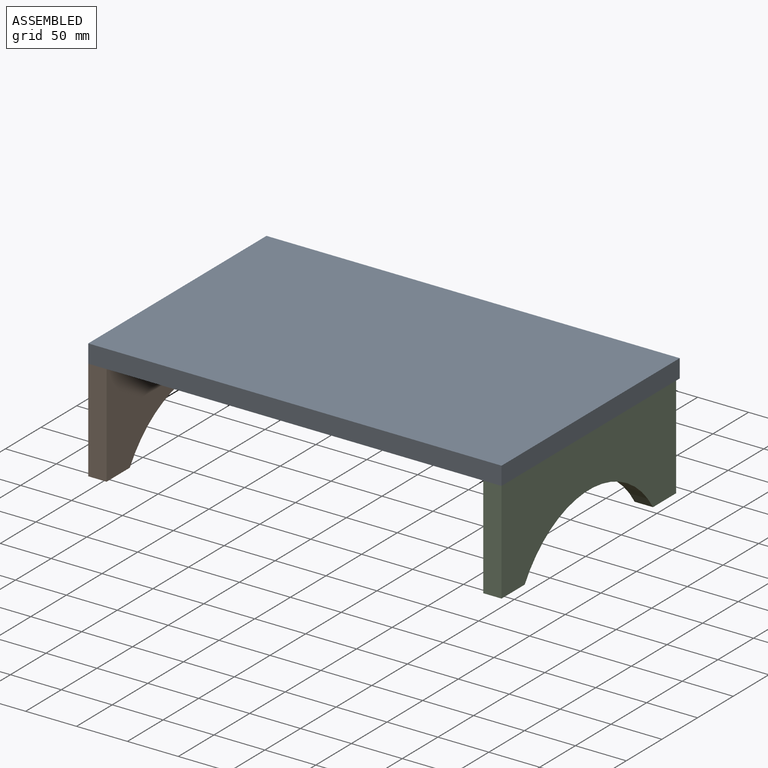
[diagram: assembled view]
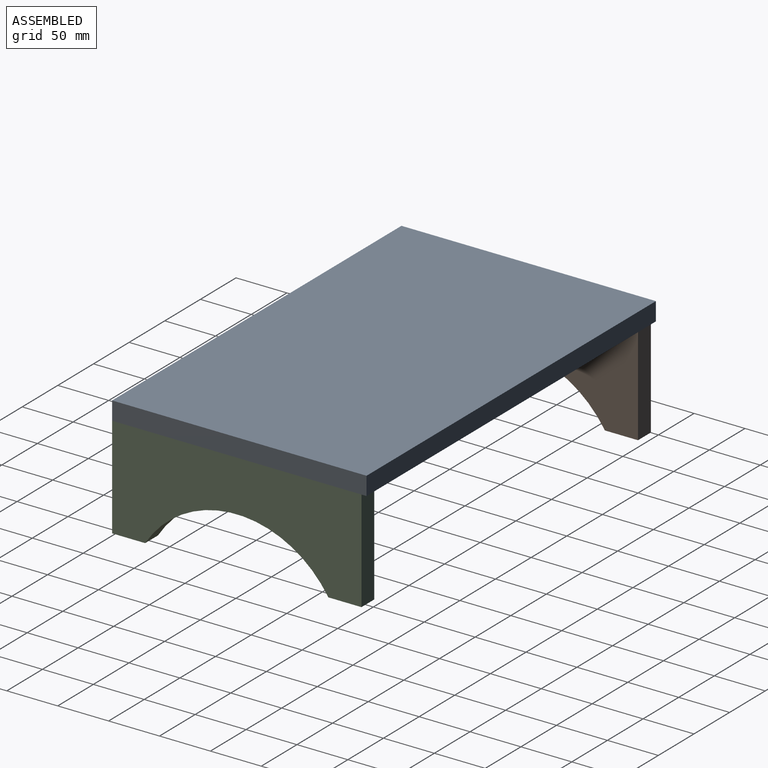
[diagram: assembled view, second angle]
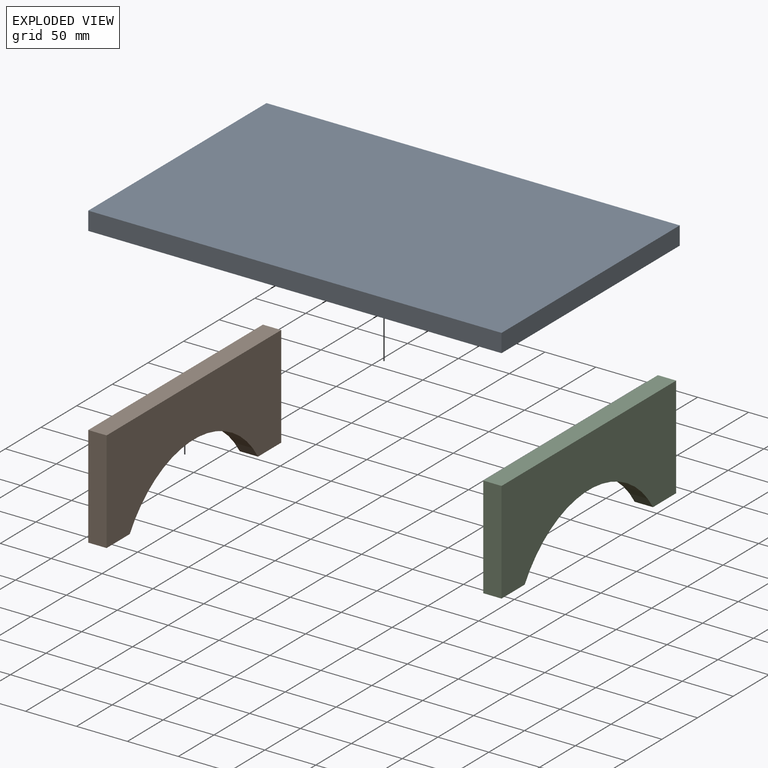
[diagram: exploded view]
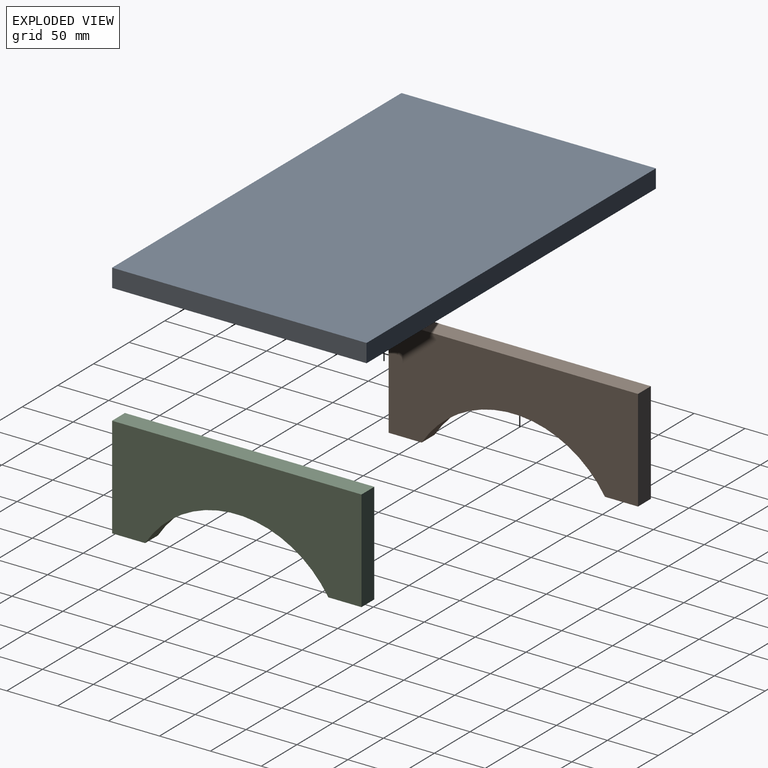
[diagram: exploded view, second angle]
ASSEMBLY  parts=3 mates=2
PART A: 6 faces, bbox 406x250x18 mm
  f0: plane 406x250mm, normal (0,0,1), area 101500mm2, adj f1,f3,f4,f5
  f1: plane 250x18mm, normal (-1,0,0), area 4500mm2, adj f0,f2,f4,f5
  f2: plane 406x250mm, normal (0,0,-1), area 101500mm2, adj f1,f3,f4,f5
  f3: plane 250x18mm, normal (1,0,0), area 4500mm2, adj f0,f2,f4,f5
  f4: plane 406x18mm, normal (0,-1,0), area 7308mm2, adj f0,f1,f2,f3
  f5: plane 406x18mm, normal (0,1,0), area 7308mm2, adj f0,f1,f2,f3
PART B: 8 faces, bbox 18x245x100 mm
  f0: plane 32.5x18mm, normal (0,0,-1), area 585mm2, adj f1,f2,f6,f7
  f1: plane 245x100mm, normal (1,0,0), area 18182.8mm2, adj f0,f3,f4,f5,f6,f7
  f2: plane 245x100mm, normal (-1,0,0), area 18182.8mm2, adj f0,f3,f4,f5,f6,f7
  f3: plane 32.5x18mm, normal (0,0,-1), area 585mm2, adj f1,f2,f5,f7
  f4: plane 245x18mm, normal (0,0,1), area 4410mm2, adj f1,f2,f5,f6
  f5: plane 100x18mm, normal (0,-1,0), area 1800mm2, adj f1,f2,f3,f4
  f6: plane 100x18mm, normal (0,1,0), area 1800mm2, adj f0,f1,f2,f4
  f7: cylinder r=106.31mm len=180mm, axis (1,0,0), area 3863.7mm2, adj f0,f1,f2,f3
PART C: same geometry as B
PLACE A t=(-127.78,278.95,-65.21)mm fixed
PLACE B t=(-533.78,273.95,-165.21)mm
PLACE C t=(-145.78,273.95,-165.21)mm
MATE fastened A.f2 <-> C.f4  axis (0,0,-1) through (-127.78,28.95,-65.21)mm
MATE fastened B.f4 <-> A.f2  axis (0,0,1) through (-533.78,28.95,-65.21)mm
